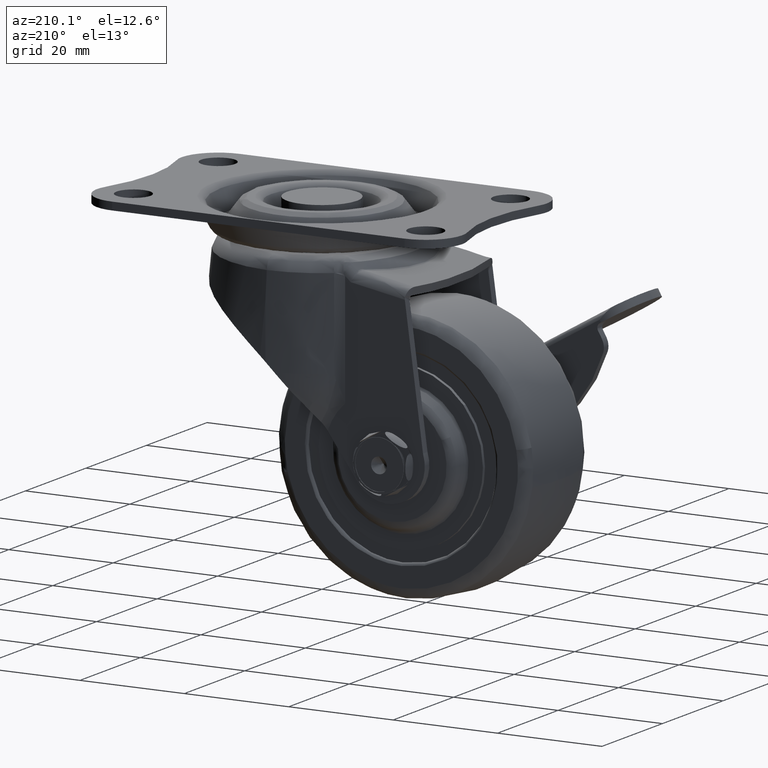
[diagram: clean part render]
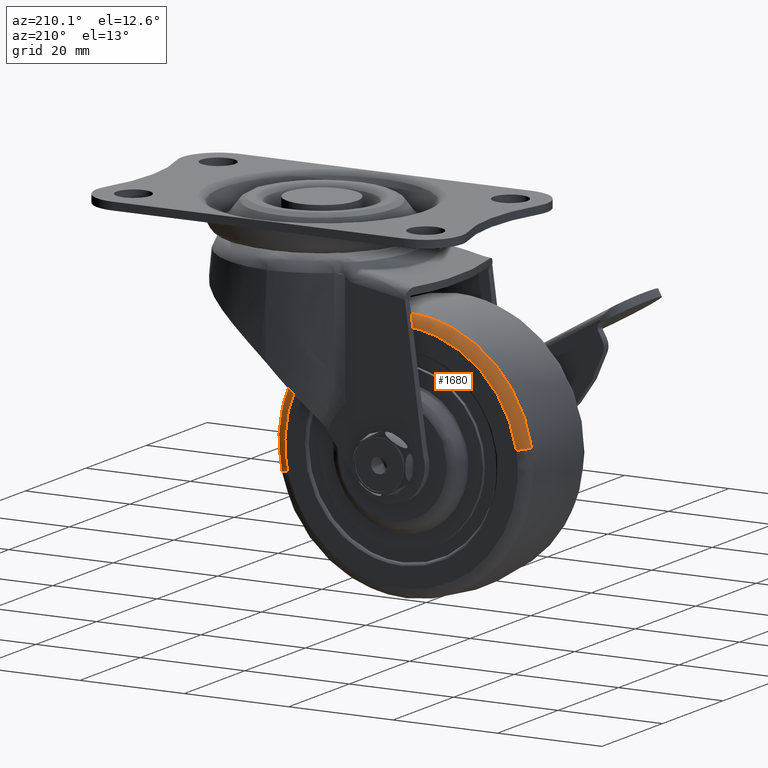
[diagram: same view with one face highlighted and labeled with its STEP entity id]
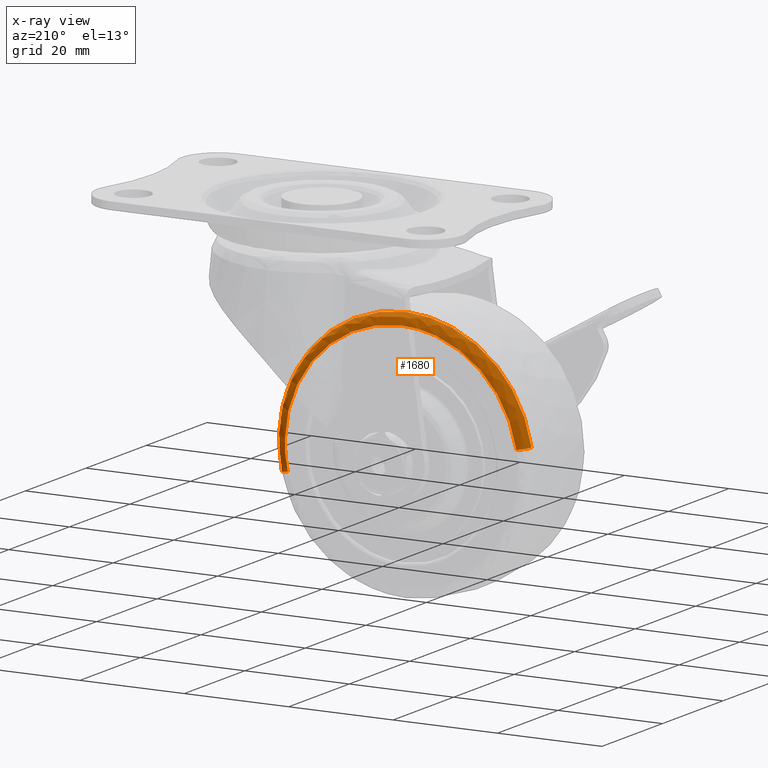
[diagram: x-ray of the same camera — body ghosted, the highlighted face saturated]
A machine part, auxiliary view. The second image highlights one B-rep face of the part: STEP entity #1680.
The next image is the same camera in x-ray: the body ghosted, the highlighted face saturated — about 0% of this face is hidden behind the body in this view.
In plain terms, the highlighted face is a freeform B-spline surface patch.
Its self-contained STEP definition (entity closure, byte-faithful):
#1468=CARTESIAN_POINT('',(0.787601306008628,9.999999999999879,-43.385546290235133));
#1469=VERTEX_POINT('',#1468);
#1488=CARTESIAN_POINT('',(2.711844843311611,8.333322122936623,-43.817029349833831));
#1489=VERTEX_POINT('',#1488);
#1490=CARTESIAN_POINT('',(2.711844843311611,8.333322122936623,-43.817029349833831));
#1491=CARTESIAN_POINT('',(2.685724008618279,8.491874676525518,-43.811172140261412));
#1492=CARTESIAN_POINT('',(2.587734801731267,8.830709296206406,-43.789199514674550));
#1493=CARTESIAN_POINT('',(2.278485261567513,9.346643818582011,-43.719854894219189));
#1494=CARTESIAN_POINT('',(1.842238254305658,9.716180114316382,-43.622032976262780));
#1495=CARTESIAN_POINT('',(1.315300364936540,9.947894930057444,-43.503874973740352));
#1496=CARTESIAN_POINT('',(0.987309835219271,10.000102331217780,-43.430327964461888));
#1497=CARTESIAN_POINT('',(0.787601306008628,9.999999999999879,-43.385546290235133));
#1498=B_SPLINE_CURVE_WITH_KNOTS('',3,(#1490,#1491,#1492,#1493,#1494,#1495,#1496,#1497),.UNSPECIFIED.,.F.,.U.,(4,1,1,1,1,4),(0.000000219180797,0.482401383246459,1.052556389154751,1.798077684167724,2.192787271970190,2.806763199476050),.UNSPECIFIED.);
#1499=EDGE_CURVE('',#1489,#1469,#1498,.T.);
#1536=CARTESIAN_POINT('',(-44.977125332039371,8.333330171501391,-34.547808609732982));
#1537=VERTEX_POINT('',#1536);
#1545=CARTESIAN_POINT('',(-43.031354553553101,9.999999999999877,-34.868533401083631));
#1546=VERTEX_POINT('',#1545);
#1547=CARTESIAN_POINT('',(-44.977125332039371,8.333330171501391,-34.547808609732982));
#1548=CARTESIAN_POINT('',(-44.943571509912083,8.535150687611758,-34.553339344763138));
#1549=CARTESIAN_POINT('',(-44.819105308636203,8.914070814170231,-34.573855325824709));
#1550=CARTESIAN_POINT('',(-44.524087977116842,9.335641493629520,-34.622483547168613));
#1551=CARTESIAN_POINT('',(-44.176801773463758,9.646516703791964,-34.679727337874787));
#1552=CARTESIAN_POINT('',(-43.709078715767959,9.915068509344193,-34.756822945304513));
#1553=CARTESIAN_POINT('',(-43.291030506659112,10.000297450773351,-34.825730560793239));
#1554=CARTESIAN_POINT('',(-43.031354553553101,9.999999999999877,-34.868533401083631));
#1555=B_SPLINE_CURVE_WITH_KNOTS('',3,(#1547,#1548,#1549,#1550,#1551,#1552,#1553,#1554),.UNSPECIFIED.,.F.,.U.,(4,1,1,1,1,4),(0.000000219177896,0.613974480401163,1.184129116789486,1.534944177444256,2.017352161829681,2.806755582033579),.UNSPECIFIED.);
#1556=EDGE_CURVE('',#1537,#1546,#1555,.T.);
#1578=CARTESIAN_POINT('',(-44.994098837089815,8.207293997011609,-34.545010837361211));
#1579=CARTESIAN_POINT('',(-41.039109674451026,8.207293997011611,-10.550912000271406));
#1580=CARTESIAN_POINT('',(-17.045010837361207,8.207293997011609,-14.505901162910193));
#1581=CARTESIAN_POINT('',(6.949087999728595,8.207293997011611,-18.460890325548984));
#1582=CARTESIAN_POINT('',(2.994098837089805,8.207293997011609,-42.454989162638796));
#1583=CARTESIAN_POINT('',(2.880908855659496,8.207293997011607,-43.141689300141863));
#1584=CARTESIAN_POINT('',(2.728630225900285,8.207293997011607,-43.820791847377222));
#1585=CARTESIAN_POINT('',(-44.797590262829623,10.118469037606397,-34.577401688413431));
#1586=CARTESIAN_POINT('',(-40.874991951243047,10.118469037606397,-10.779811425583809));
#1587=CARTESIAN_POINT('',(-17.077401688413431,10.118469037606397,-14.702409737170365));
#1588=CARTESIAN_POINT('',(6.720188574416191,10.118469037606397,-18.625008048756932));
#1589=CARTESIAN_POINT('',(2.797590262829632,10.118469037606397,-42.422598311586562));
#1590=CARTESIAN_POINT('',(2.685327292745839,10.118469037606399,-43.103674463547144));
#1591=CARTESIAN_POINT('',(2.534295805320559,10.118469037606401,-43.777215248524229));
#1592=CARTESIAN_POINT('',(-42.905508692943272,9.995928944934756,-34.889276793810673));
#1593=CARTESIAN_POINT('',(-39.294785486753945,9.995928944934754,-12.983768100867408));
#1594=CARTESIAN_POINT('',(-17.389276793810673,9.995928944934756,-16.594491307056739));
#1595=CARTESIAN_POINT('',(4.516231899132589,9.995928944934754,-20.205214513246052));
#1596=CARTESIAN_POINT('',(0.905508692943270,9.995928944934756,-42.110723206189320));
#1597=CARTESIAN_POINT('',(0.802171445772188,9.995928944934754,-42.737648848767179));
#1598=CARTESIAN_POINT('',(0.663148060456147,9.995928944934756,-43.357638240861753));
#1606=(BOUNDED_SURFACE()B_SPLINE_SURFACE(2,2,((#1578,#1585,#1592),(#1579,#1586,#1593),(#1580,#1587,#1594),(#1581,#1588,#1595),(#1582,#1589,#1596),(#1583,#1590,#1597),(#1584,#1591,#1598)),.UNSPECIFIED.,.F.,.F.,.U.)B_SPLINE_SURFACE_WITH_KNOTS((3,2,2,3),(3,3),(0.0,40.291163418658357,80.582326837316728,82.193971837077157),(0.0,3.220322161783872),.UNSPECIFIED.)GEOMETRIC_REPRESENTATION_ITEM()RATIONAL_B_SPLINE_SURFACE(((0.916340360924849,0.659684399292946,0.913291220906917),(0.647950483084889,0.466467312183016,0.645794415501422),(0.916340360924849,0.659684399292946,0.913291220906917),(0.647950483084889,0.466467312183016,0.645794415501422),(0.916340360924849,0.659684399292946,0.913291220906917),(0.905604776049512,0.651955723179195,0.902591358894891),(0.895728037145141,0.644845340564894,0.892747485027491)))REPRESENTATION_ITEM('')SURFACE());
#1607=CARTESIAN_POINT('',(-21.0,9.999999999999879,-16.171360698131700));
#1608=VERTEX_POINT('',#1607);
#1609=CARTESIAN_POINT('',(-21.0,9.999999999999879,-16.171360698131700));
#1610=CARTESIAN_POINT('',(-20.114607765014021,9.999999999999872,-16.171342801967409));
#1611=CARTESIAN_POINT('',(-18.291752122361729,9.999999999999897,-16.279937998602641));
#1612=CARTESIAN_POINT('',(-15.006931728897611,9.999999999999867,-16.884027630118901));
#1613=CARTESIAN_POINT('',(-11.609275039054181,9.999999999999904,-18.110338658261160));
#1614=CARTESIAN_POINT('',(-8.444882581669168,9.999999999999885,-19.942682318529080));
#1615=CARTESIAN_POINT('',(-5.945743413904839,9.999999999999851,-21.915610983873279));
#1616=CARTESIAN_POINT('',(-3.556611923923291,9.999999999999956,-24.398756876071559));
#1617=CARTESIAN_POINT('',(-1.306193092648876,9.999999999999757,-27.676496452036812));
#1618=CARTESIAN_POINT('',(0.305318516035079,10.000000000000099,-31.428419394636730));
#1619=CARTESIAN_POINT('',(1.140750312296633,9.999999999999780,-35.041936935792663));
#1620=CARTESIAN_POINT('',(1.455023236711408,9.999999999999959,-38.945073274532731));
#1621=CARTESIAN_POINT('',(1.163985282227026,9.999999999999824,-41.708528159303228));
#1622=CARTESIAN_POINT('',(0.787601306008628,9.999999999999879,-43.385546290235133));
#1623=B_SPLINE_CURVE_WITH_KNOTS('',3,(#1609,#1610,#1611,#1612,#1613,#1614,#1615,#1616,#1617,#1618,#1619,#1620,#1621,#1622),.UNSPECIFIED.,.F.,.U.,(4,1,1,1,1,1,1,1,1,1,1,4),(0.000000098802182,2.656181014299563,5.468614814668825,9.999805224929062,13.437241316876500,16.405968748473740,19.530903214975648,23.749514644838509,28.280687235633390,31.718141299856160,34.843100562115779,39.999218995488292),.UNSPECIFIED.);
#1624=EDGE_CURVE('',#1608,#1469,#1623,.T.);
#1625=ORIENTED_EDGE('',*,*,#1624,.F.);
#1626=CARTESIAN_POINT('',(-43.031354553553101,9.999999999999877,-34.868533401083631));
#1627=CARTESIAN_POINT('',(-42.811830844571837,9.999999999999893,-33.536159549827637));
#1628=CARTESIAN_POINT('',(-42.099170675958781,9.999999999999881,-30.792105401162910));
#1629=CARTESIAN_POINT('',(-40.404417444626560,9.999999999999909,-27.226891817717039));
#1630=CARTESIAN_POINT('',(-38.410192007595107,9.999999999999867,-24.415656736866939));
#1631=CARTESIAN_POINT('',(-36.149960201269963,9.999999999999890,-21.983833454752119));
#1632=CARTESIAN_POINT('',(-33.612763846217653,9.999999999999879,-19.959319338840491));
#1633=CARTESIAN_POINT('',(-30.719767845054719,9.999999999999883,-18.325818106001410));
#1634=CARTESIAN_POINT('',(-28.056643600281141,9.999999999999881,-17.255673637453079));
#1635=CARTESIAN_POINT('',(-24.846352031066999,9.999999999999888,-16.407099162307819));
#1636=CARTESIAN_POINT('',(-22.473109495806799,9.999999999999879,-16.171184695771899));
#1637=CARTESIAN_POINT('',(-21.0,9.999999999999879,-16.171360698131700));
#1638=B_SPLINE_CURVE_WITH_KNOTS('',3,(#1626,#1627,#1628,#1629,#1630,#1631,#1632,#1633,#1634,#1635,#1636,#1637),.UNSPECIFIED.,.F.,.U.,(4,1,1,1,1,1,1,1,1,4),(0.000000059117017,4.051013611642865,8.470322996461682,11.784803947277760,14.362747624510430,18.413710610091901,21.482688612643340,24.306138539449709,27.006825074225691,31.426114737663770),.UNSPECIFIED.);
#1639=EDGE_CURVE('',#1546,#1608,#1638,.T.);
#1640=ORIENTED_EDGE('',*,*,#1639,.F.);
#1641=ORIENTED_EDGE('',*,*,#1556,.F.);
#1642=CARTESIAN_POINT('',(-21.0,8.333332865113482,-14.199336061692950));
#1643=VERTEX_POINT('',#1642);
#1644=CARTESIAN_POINT('',(-44.977125332039371,8.333330171501391,-34.547808609732982));
#1645=CARTESIAN_POINT('',(-44.759933692226021,8.333330270019333,-33.229582906079408));
#1646=CARTESIAN_POINT('',(-44.107328855077363,8.333330477111991,-30.629129219876500));
#1647=CARTESIAN_POINT('',(-42.412361753777887,8.333330827905694,-26.737103726747190));
#1648=CARTESIAN_POINT('',(-40.223741310928403,8.333331166291114,-23.464379694642020));
#1649=CARTESIAN_POINT('',(-38.005851309779921,8.333331448365136,-21.078602456761470));
#1650=CARTESIAN_POINT('',(-35.957299800854287,8.333331681707213,-19.291026021725951));
#1651=CARTESIAN_POINT('',(-33.548488957295902,8.333331929447558,-17.596604478143529));
#1652=CARTESIAN_POINT('',(-30.088960981624581,8.333332241863761,-15.826845305521360));
#1653=CARTESIAN_POINT('',(-25.809551663007230,8.333332570793216,-14.517746473948700));
#1654=CARTESIAN_POINT('',(-22.603208561160340,8.333332773956528,-14.199131151957239));
#1655=CARTESIAN_POINT('',(-21.0,8.333332865113482,-14.199336061692950));
#1656=B_SPLINE_CURVE_WITH_KNOTS('',3,(#1644,#1645,#1646,#1647,#1648,#1649,#1650,#1651,#1652,#1653,#1654,#1655),.UNSPECIFIED.,.F.,.U.,(4,1,1,1,1,1,1,1,1,4),(0.000000058395081,4.007986975718385,8.016001814997374,12.692028240616860,15.764814338395251,17.768797345565289,20.841583377062339,24.582403207564830,29.392015542777219,34.201612815759873),.UNSPECIFIED.);
#1657=EDGE_CURVE('',#1537,#1643,#1656,.T.);
#1658=ORIENTED_EDGE('',*,*,#1657,.T.);
#1659=CARTESIAN_POINT('',(-21.0,8.333332865113482,-14.199336061692950));
#1660=CARTESIAN_POINT('',(-19.866370945404920,8.333332871577154,-14.199283248625701));
#1661=CARTESIAN_POINT('',(-17.655796940417449,8.333332827209175,-14.354313816077630));
#1662=CARTESIAN_POINT('',(-14.208490859001850,8.333332581724518,-15.076123185097840));
#1663=CARTESIAN_POINT('',(-10.954005381272321,8.333332159362588,-16.276579649769179));
#1664=CARTESIAN_POINT('',(-8.112907830190807,8.333331605036735,-17.829971776618951));
#1665=CARTESIAN_POINT('',(-5.894388972541330,8.333331036858139,-19.411447165294870));
#1666=CARTESIAN_POINT('',(-3.634592079003231,8.333330320759041,-21.396345095604151));
#1667=CARTESIAN_POINT('',(-1.129814162989805,8.333329280124010,-24.268738248545141));
#1668=CARTESIAN_POINT('',(1.094248549119783,8.333327904038249,-28.050207905056649));
#1669=CARTESIAN_POINT('',(2.425927950898445,8.333326555709940,-31.742283292715769));
#1670=CARTESIAN_POINT('',(3.123534306502927,8.333325335252189,-35.076353841429523));
#1671=CARTESIAN_POINT('',(3.438148763960754,8.333323901839771,-38.984367281043632));
#1672=CARTESIAN_POINT('',(3.121550256389699,8.333322795533663,-41.991908263111377));
#1673=CARTESIAN_POINT('',(2.711844843311611,8.333322122936623,-43.817029349833831));
#1674=B_SPLINE_CURVE_WITH_KNOTS('',3,(#1659,#1660,#1661,#1662,#1663,#1664,#1665,#1666,#1667,#1668,#1669,#1670,#1671,#1672,#1673),.UNSPECIFIED.,.F.,.U.,(4,1,1,1,1,1,1,1,1,1,1,1,4),(0.000000091159272,3.400885812149355,6.631785872681036,10.542876450278090,13.773760076622590,16.324456856732219,18.705146072431159,22.786163449148699,27.717561140927149,31.798671798816549,34.519421289346838,37.920377672628661,43.531878032764091),.UNSPECIFIED.);
#1675=EDGE_CURVE('',#1643,#1489,#1674,.T.);
#1676=ORIENTED_EDGE('',*,*,#1675,.T.);
#1677=ORIENTED_EDGE('',*,*,#1499,.T.);
#1678=EDGE_LOOP('',(#1625,#1640,#1641,#1658,#1676,#1677));
#1679=FACE_OUTER_BOUND('',#1678,.T.);
#1680=ADVANCED_FACE('',(#1679),#1606,.T.);